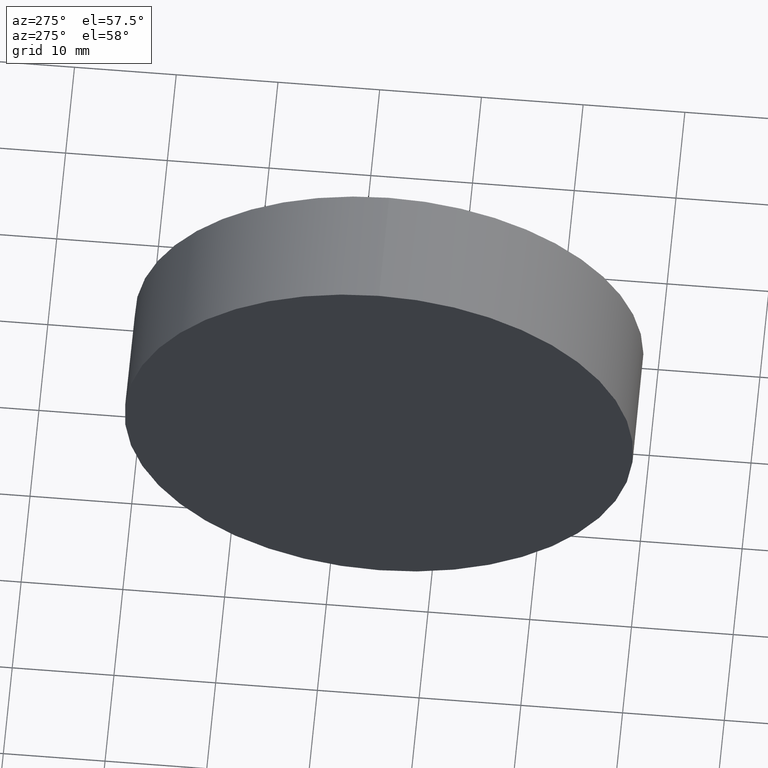
[diagram: clean part render]
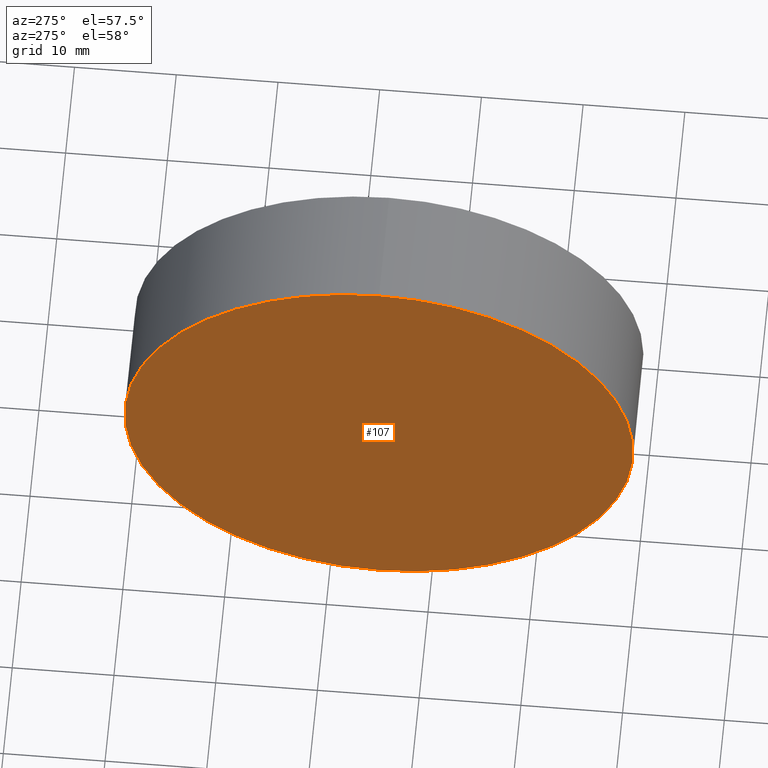
[diagram: same view with one face highlighted and labeled with its STEP entity id]
A machine part, auxiliary view. The second image highlights one B-rep face of the part: STEP entity #107.
In plain terms, the highlighted planar face has unit normal (1, 0, 0).
Its self-contained STEP definition (entity closure, byte-faithful):
#19 = EDGE_CURVE ( 'NONE', #158, #92, #135, .T. ) ;
#47 = CARTESIAN_POINT ( 'NONE',  ( 113.7394371346435000, 65.15563045701519200, 0.0000000000000000000 ) ) ;
#56 = DIRECTION ( 'NONE',  ( 1.000000000000000000, 0.0000000000000000000, 0.0000000000000000000 ) ) ;
#57 = EDGE_CURVE ( 'NONE', #92, #158, #67, .T. ) ;
#63 = DIRECTION ( 'NONE',  ( 0.0000000000000000000, 0.0000000000000000000, 1.000000000000000000 ) ) ;
#67 = CIRCLE ( 'NONE', #105, 24.99999999999999300 ) ;
#92 = VERTEX_POINT ( 'NONE', #124 ) ;
#98 = AXIS2_PLACEMENT_3D ( 'NONE', #163, #138, #108 ) ;
#105 = AXIS2_PLACEMENT_3D ( 'NONE', #47, #148, #63 ) ;
#106 = ORIENTED_EDGE ( 'NONE', *, *, #57, .T. ) ;
#107 = ADVANCED_FACE ( 'NONE', ( #141 ), #139, .F. ) ;
#108 = DIRECTION ( 'NONE',  ( 0.0000000000000000000, 0.0000000000000000000, 1.000000000000000000 ) ) ;
#121 = EDGE_LOOP ( 'NONE', ( #106, #174 ) ) ;
#124 = CARTESIAN_POINT ( 'NONE',  ( 113.7394371346435000, 65.15563045701519200, 24.99999999999999300 ) ) ;
#135 = CIRCLE ( 'NONE', #98, 24.99999999999999300 ) ;
#138 = DIRECTION ( 'NONE',  ( -1.000000000000000000, -0.0000000000000000000, -0.0000000000000000000 ) ) ;
#139 = PLANE ( 'NONE',  #169 ) ;
#141 = FACE_OUTER_BOUND ( 'NONE', #121, .T. ) ;
#148 = DIRECTION ( 'NONE',  ( -1.000000000000000000, -0.0000000000000000000, -0.0000000000000000000 ) ) ;
#158 = VERTEX_POINT ( 'NONE', #182 ) ;
#163 = CARTESIAN_POINT ( 'NONE',  ( 113.7394371346435000, 65.15563045701519200, 0.0000000000000000000 ) ) ;
#168 = DIRECTION ( 'NONE',  ( 0.0000000000000000000, 0.0000000000000000000, -1.000000000000000000 ) ) ;
#169 = AXIS2_PLACEMENT_3D ( 'NONE', #171, #56, #168 ) ;
#171 = CARTESIAN_POINT ( 'NONE',  ( 113.7394371346435000, 65.15563045701519200, 0.0000000000000000000 ) ) ;
#174 = ORIENTED_EDGE ( 'NONE', *, *, #19, .T. ) ;
#182 = CARTESIAN_POINT ( 'NONE',  ( 113.7394371346435000, 65.15563045701519200, -24.99999999999999300 ) ) ;